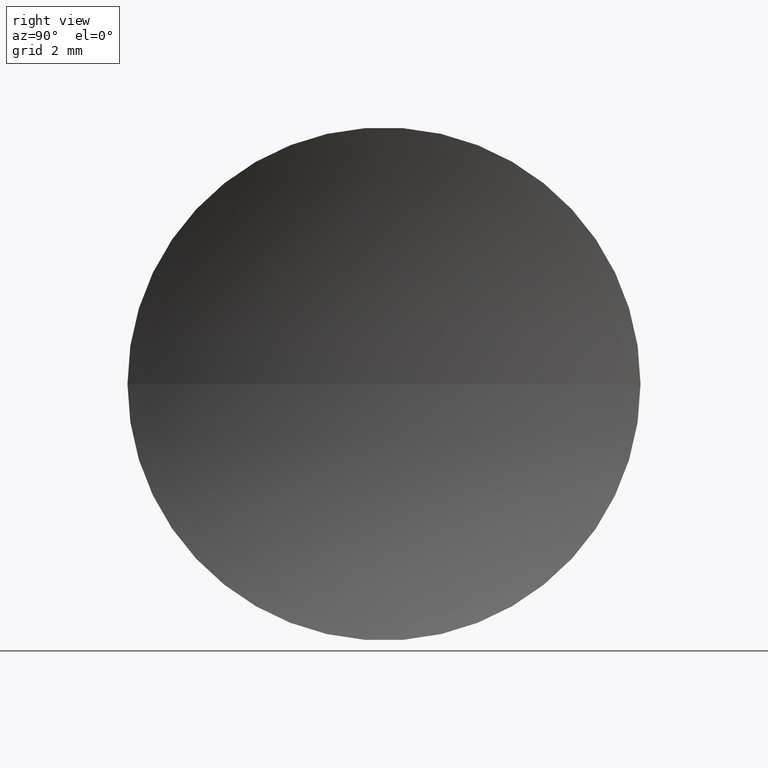
[diagram: clean part render]
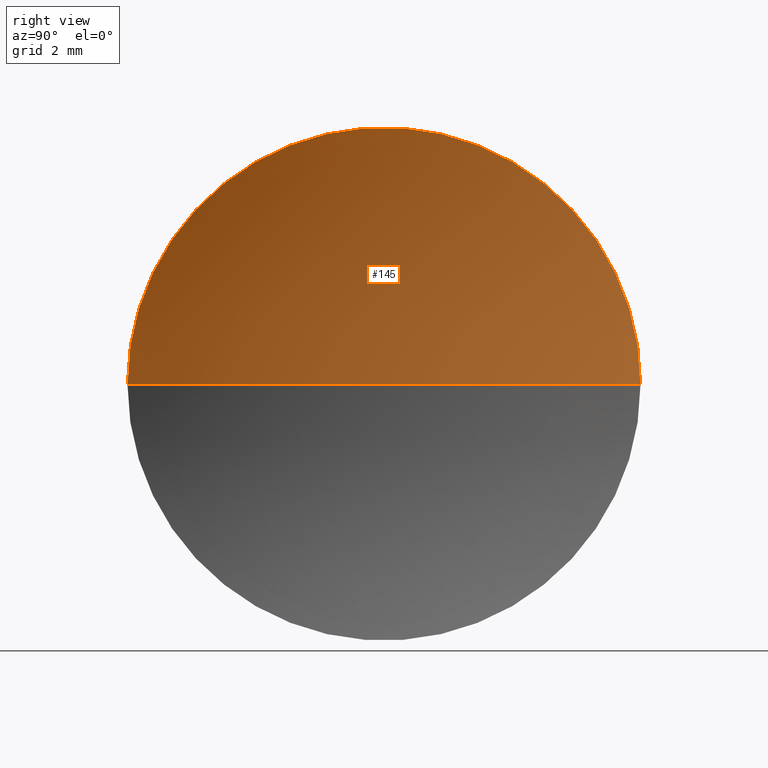
[diagram: same view with one face highlighted and labeled with its STEP entity id]
A machine part, right view. The second image highlights one B-rep face of the part: STEP entity #145.
In plain terms, the highlighted spherical surface has radius 20.65 mm.
Its self-contained STEP definition (entity closure, byte-faithful):
#14 = AXIS2_PLACEMENT_3D ( 'NONE', #47, #57, #134 ) ;
#30 = CIRCLE ( 'NONE', #108, 20.65000000000000200 ) ;
#31 = CARTESIAN_POINT ( 'NONE',  ( 46.35442262622448300, 26.06225218280608800, 0.0000000000000000000 ) ) ;
#40 = DIRECTION ( 'NONE',  ( -1.000000000000000000, 0.0000000000000000000, 0.0000000000000000000 ) ) ;
#47 = CARTESIAN_POINT ( 'NONE',  ( 47.96702522006625500, 26.06225218280608000, 0.0000000000000000000 ) ) ;
#48 = EDGE_LOOP ( 'NONE', ( #53, #77, #85 ) ) ;
#49 = CIRCLE ( 'NONE', #14, 8.000000000000003600 ) ;
#50 = EDGE_CURVE ( 'NONE', #164, #90, #49, .T. ) ;
#52 = DIRECTION ( 'NONE',  ( -6.720478357295135600E-016, -1.000000000000000000, 0.0000000000000000000 ) ) ;
#53 = ORIENTED_EDGE ( 'NONE', *, *, #64, .F. ) ;
#55 = CARTESIAN_POINT ( 'NONE',  ( 67.00442262622448200, 26.06225218280608000, 0.0000000000000000000 ) ) ;
#57 = DIRECTION ( 'NONE',  ( -1.000000000000000000, 4.058245434298766700E-016, -0.0000000000000000000 ) ) ;
#64 = EDGE_CURVE ( 'NONE', #90, #144, #30, .T. ) ;
#66 = CARTESIAN_POINT ( 'NONE',  ( 67.00442262622448200, 26.06225218280608000, 0.0000000000000000000 ) ) ;
#68 = CARTESIAN_POINT ( 'NONE',  ( 47.96702522006625500, 34.06225218280608400, 9.797174393178819700E-016 ) ) ;
#72 = FACE_OUTER_BOUND ( 'NONE', #48, .T. ) ;
#77 = ORIENTED_EDGE ( 'NONE', *, *, #50, .F. ) ;
#78 = DIRECTION ( 'NONE',  ( 0.0000000000000000000, 0.0000000000000000000, 1.000000000000000000 ) ) ;
#82 = AXIS2_PLACEMENT_3D ( 'NONE', #101, #78, #52 ) ;
#85 = ORIENTED_EDGE ( 'NONE', *, *, #102, .T. ) ;
#90 = VERTEX_POINT ( 'NONE', #68 ) ;
#99 = SPHERICAL_SURFACE ( 'NONE', #82, 20.65000000000000200 ) ;
#101 = CARTESIAN_POINT ( 'NONE',  ( 67.00442262622448200, 26.06225218280608000, 0.0000000000000000000 ) ) ;
#102 = EDGE_CURVE ( 'NONE', #164, #144, #131, .T. ) ;
#108 = AXIS2_PLACEMENT_3D ( 'NONE', #55, #118, #139 ) ;
#114 = CARTESIAN_POINT ( 'NONE',  ( 47.96702522006625500, 18.06225218280608400, 0.0000000000000000000 ) ) ;
#116 = DIRECTION ( 'NONE',  ( 0.0000000000000000000, -0.0000000000000000000, -1.000000000000000000 ) ) ;
#118 = DIRECTION ( 'NONE',  ( -4.969917281268344600E-032, -1.224646799147353200E-016, 1.000000000000000000 ) ) ;
#131 = CIRCLE ( 'NONE', #148, 20.65000000000000200 ) ;
#134 = DIRECTION ( 'NONE',  ( 0.0000000000000000000, -1.000000000000000000, 0.0000000000000000000 ) ) ;
#139 = DIRECTION ( 'NONE',  ( 0.0000000000000000000, -1.000000000000000000, -1.224646799147353200E-016 ) ) ;
#144 = VERTEX_POINT ( 'NONE', #31 ) ;
#145 = ADVANCED_FACE ( 'NONE', ( #72 ), #99, .F. ) ;
#148 = AXIS2_PLACEMENT_3D ( 'NONE', #66, #116, #40 ) ;
#164 = VERTEX_POINT ( 'NONE', #114 ) ;